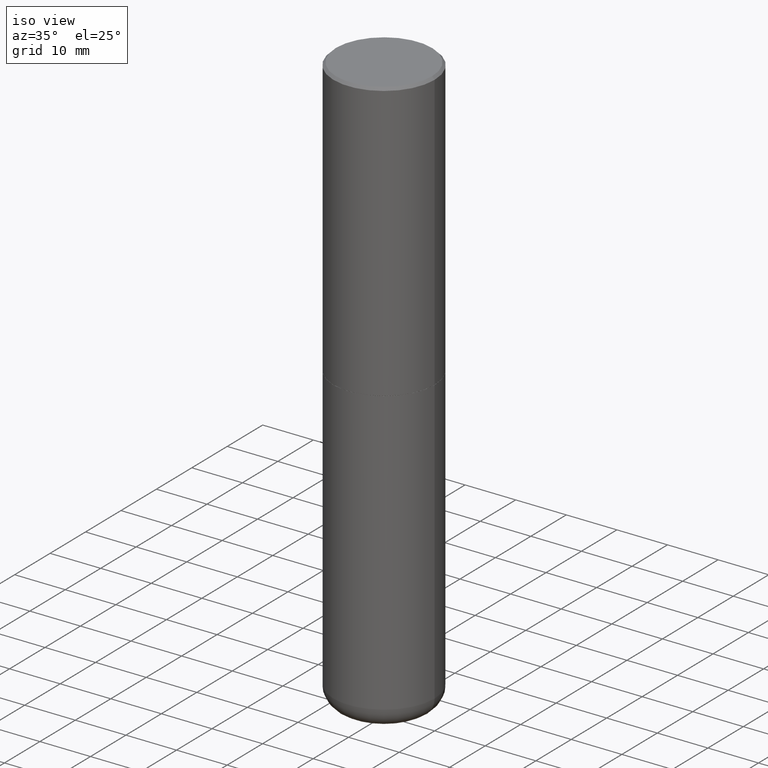
[diagram: clean part render]
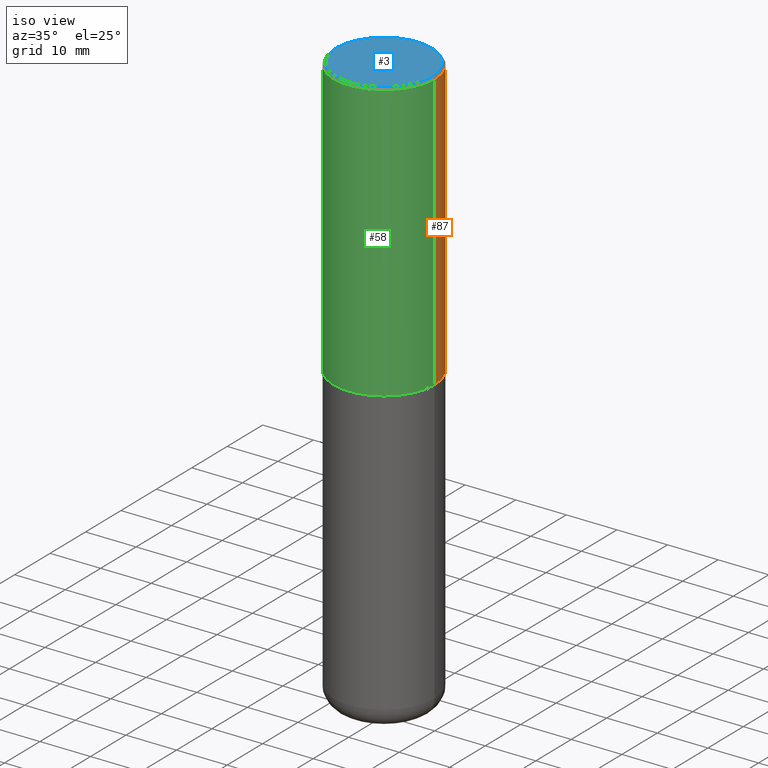
[diagram: same view with three faces highlighted in distinct colors, each labeled with its STEP entity id]
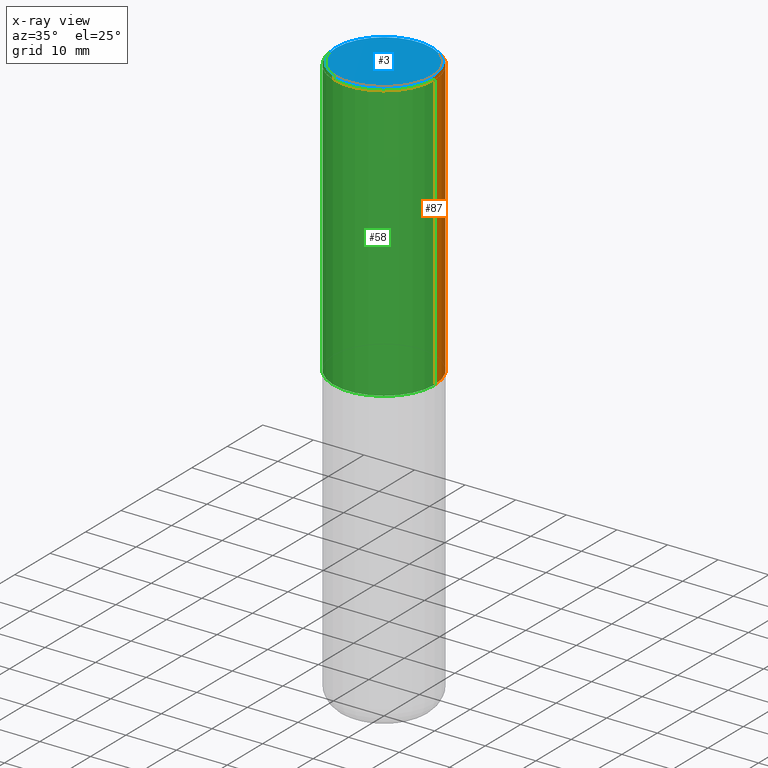
[diagram: x-ray of the same camera — body ghosted, the three highlighted faces saturated]
A machine part, iso view with three faces highlighted in distinct colors.
The next image is the same camera in x-ray (body ghosted, the three faces saturated) — at least one of them is partly hidden behind the body in this view.
Their STEP definitions:

[orange] entity #87 — the highlighted cylindrical surface (partial cylindrical patch) has radius 10 mm, axis along (-0, 0, 1).
#8 = AXIS2_PLACEMENT_3D ( 'NONE', #183, #410, #210 ) ;
#14 = VECTOR ( 'NONE', #386, 39.37007874015748143 ) ;
#19 = CARTESIAN_POINT ( 'NONE',  ( 0.000000000000000000, 0.000000000000000000, 0.000000000000000000 ) ) ;
#40 = ORIENTED_EDGE ( 'NONE', *, *, #278, .F. ) ;
#44 = EDGE_CURVE ( 'NONE', #245, #342, #307, .T. ) ;
#62 = CARTESIAN_POINT ( 'NONE',  ( -0.3937000000000002720, -1.015989167596965718E-15, -2.164399999999999658 ) ) ;
#72 = ORIENTED_EDGE ( 'NONE', *, *, #44, .T. ) ;
#75 = EDGE_CURVE ( 'NONE', #342, #175, #153, .T. ) ;
#87 = ADVANCED_FACE ( 'NONE', ( #110 ), #319, .T. ) ;
#107 = EDGE_LOOP ( 'NONE', ( #72, #390, #40, #405 ) ) ;
#110 = FACE_OUTER_BOUND ( 'NONE', #107, .T. ) ;
#149 = DIRECTION ( 'NONE',  ( -2.445468806185136877E-29, 3.491481338843145188E-15, 1.000000000000000000 ) ) ;
#150 = VECTOR ( 'NONE', #149, 39.37007874015748143 ) ;
#153 = LINE ( 'NONE', #294, #14 ) ;
#162 = CARTESIAN_POINT ( 'NONE',  ( 0.3937000000000001054, -2.770807688499516128E-15, -0.02000000000000008715 ) ) ;
#170 = DIRECTION ( 'NONE',  ( -2.445468806185136597E-29, 3.491481338843145583E-15, 1.000000000000000000 ) ) ;
#175 = VERTEX_POINT ( 'NONE', #252 ) ;
#183 = CARTESIAN_POINT ( 'NONE',  ( 4.890937612370294178E-31, -6.982962677686321191E-17, -0.02000000000000008715 ) ) ;
#205 = AXIS2_PLACEMENT_3D ( 'NONE', #343, #170, #310 ) ;
#210 = DIRECTION ( 'NONE',  ( 1.000000000000000000, -6.982962677686266711E-15, 0.000000000000000000 ) ) ;
#218 = DIRECTION ( 'NONE',  ( 1.000000000000000000, -6.982962677686266711E-15, 4.876176775795935793E-29 ) ) ;
#223 = AXIS2_PLACEMENT_3D ( 'NONE', #19, #288, #218 ) ;
#245 = VERTEX_POINT ( 'NONE', #349 ) ;
#250 = EDGE_CURVE ( 'NONE', #245, #415, #291, .T. ) ;
#252 = CARTESIAN_POINT ( 'NONE',  ( -0.3937000000000001054, 2.679362779428220707E-15, -0.02000000000000008715 ) ) ;
#278 = EDGE_CURVE ( 'NONE', #415, #175, #417, .T. ) ;
#288 = DIRECTION ( 'NONE',  ( -2.445468806185136597E-29, 3.491481338843145583E-15, 1.000000000000000000 ) ) ;
#291 = LINE ( 'NONE', #327, #150 ) ;
#294 = CARTESIAN_POINT ( 'NONE',  ( -0.3937000000000002164, 2.797406750687515970E-15, -1.936584745033357576E-29 ) ) ;
#307 = CIRCLE ( 'NONE', #205, 0.3937000000000002720 ) ;
#310 = DIRECTION ( 'NONE',  ( 1.000000000000000000, -6.982962677686269077E-15, 0.000000000000000000 ) ) ;
#319 = CYLINDRICAL_SURFACE ( 'NONE', #223, 0.3937000000000002164 ) ;
#327 = CARTESIAN_POINT ( 'NONE',  ( 0.3937000000000002164, -2.749192406205084794E-15, 1.919750796630861012E-29 ) ) ;
#342 = VERTEX_POINT ( 'NONE', #62 ) ;
#343 = CARTESIAN_POINT ( 'NONE',  ( 5.292972684107107621E-29, -7.556962209792102838E-15, -2.164399999999999658 ) ) ;
#349 = CARTESIAN_POINT ( 'NONE',  ( 0.3937000000000002720, -1.030615461599718763E-14, -2.164399999999999658 ) ) ;
#386 = DIRECTION ( 'NONE',  ( -2.445468806185136877E-29, 3.491481338843145188E-15, 1.000000000000000000 ) ) ;
#390 = ORIENTED_EDGE ( 'NONE', *, *, #75, .T. ) ;
#405 = ORIENTED_EDGE ( 'NONE', *, *, #250, .F. ) ;
#410 = DIRECTION ( 'NONE',  ( -2.445468806185136597E-29, 3.491481338843145583E-15, 1.000000000000000000 ) ) ;
#415 = VERTEX_POINT ( 'NONE', #162 ) ;
#417 = CIRCLE ( 'NONE', #8, 0.3937000000000001054 ) ;

[blue] entity #3 — the highlighted planar face has unit normal (0, -0, -1).
#3 = ADVANCED_FACE ( 'NONE', ( #124 ), #157, .F. ) ;
#5 = VERTEX_POINT ( 'NONE', #263 ) ;
#7 = DIRECTION ( 'NONE',  ( -2.445468806185136597E-29, 3.491481338843145583E-15, 1.000000000000000000 ) ) ;
#12 = EDGE_CURVE ( 'NONE', #5, #191, #192, .T. ) ;
#18 = DIRECTION ( 'NONE',  ( 1.000000000000000000, -6.982962677686266711E-15, 4.877734241229876808E-29 ) ) ;
#37 = CARTESIAN_POINT ( 'NONE',  ( -5.532412495976664402E-45, 7.898818803016371119E-31, 2.262311619753217762E-16 ) ) ;
#60 = AXIS2_PLACEMENT_3D ( 'NONE', #37, #7, #98 ) ;
#98 = DIRECTION ( 'NONE',  ( 1.000000000000000000, -6.982962677686266711E-15, 4.877734241229876808E-29 ) ) ;
#111 = CARTESIAN_POINT ( 'NONE',  ( 0.3736999999999999211, -2.667287895133367964E-15, 2.262311619753402158E-16 ) ) ;
#112 = CARTESIAN_POINT ( 'NONE',  ( -5.532412495976664402E-45, 7.898818803016371119E-31, 2.262311619753217762E-16 ) ) ;
#117 = EDGE_CURVE ( 'NONE', #191, #5, #355, .T. ) ;
#120 = DIRECTION ( 'NONE',  ( -1.000000000000000000, 6.982962677686265922E-15, -4.876176775795935793E-29 ) ) ;
#124 = FACE_OUTER_BOUND ( 'NONE', #326, .T. ) ;
#139 = ORIENTED_EDGE ( 'NONE', *, *, #117, .T. ) ;
#157 = PLANE ( 'NONE',  #334 ) ;
#191 = VERTEX_POINT ( 'NONE', #111 ) ;
#192 = CIRCLE ( 'NONE', #60, 0.3736999999999999211 ) ;
#206 = AXIS2_PLACEMENT_3D ( 'NONE', #112, #258, #18 ) ;
#258 = DIRECTION ( 'NONE',  ( -2.445468806185136597E-29, 3.491481338843145583E-15, 1.000000000000000000 ) ) ;
#263 = CARTESIAN_POINT ( 'NONE',  ( -0.3736999999999999211, 2.644447966039789453E-15, 2.262311619753034352E-16 ) ) ;
#299 = CARTESIAN_POINT ( 'NONE',  ( 2.609533152651356620E-15, 0.3736999999999999211, -1.191650995338022328E-15 ) ) ;
#326 = EDGE_LOOP ( 'NONE', ( #377, #139 ) ) ;
#334 = AXIS2_PLACEMENT_3D ( 'NONE', #299, #418, #120 ) ;
#355 = CIRCLE ( 'NONE', #206, 0.3736999999999999211 ) ;
#377 = ORIENTED_EDGE ( 'NONE', *, *, #12, .T. ) ;
#418 = DIRECTION ( 'NONE',  ( 2.438088387897960049E-29, -3.491481338843145188E-15, -1.000000000000000000 ) ) ;

[green] entity #58 — the highlighted cylindrical surface (partial cylindrical patch) has radius 10 mm, axis along (-0, 0, 1).
#14 = VECTOR ( 'NONE', #386, 39.37007874015748143 ) ;
#31 = DIRECTION ( 'NONE',  ( -2.445468806185136597E-29, 3.491481338843145583E-15, 1.000000000000000000 ) ) ;
#38 = AXIS2_PLACEMENT_3D ( 'NONE', #385, #31, #222 ) ;
#58 = ADVANCED_FACE ( 'NONE', ( #398 ), #241, .T. ) ;
#62 = CARTESIAN_POINT ( 'NONE',  ( -0.3937000000000002720, -1.015989167596965718E-15, -2.164399999999999658 ) ) ;
#75 = EDGE_CURVE ( 'NONE', #342, #175, #153, .T. ) ;
#95 = DIRECTION ( 'NONE',  ( 1.000000000000000000, -6.982962677686266711E-15, 4.876176775795935793E-29 ) ) ;
#97 = EDGE_LOOP ( 'NONE', ( #184, #284, #172, #371 ) ) ;
#122 = DIRECTION ( 'NONE',  ( -2.445468806185136597E-29, 3.491481338843145583E-15, 1.000000000000000000 ) ) ;
#131 = CARTESIAN_POINT ( 'NONE',  ( 0.000000000000000000, 0.000000000000000000, 0.000000000000000000 ) ) ;
#149 = DIRECTION ( 'NONE',  ( -2.445468806185136877E-29, 3.491481338843145188E-15, 1.000000000000000000 ) ) ;
#150 = VECTOR ( 'NONE', #149, 39.37007874015748143 ) ;
#153 = LINE ( 'NONE', #294, #14 ) ;
#162 = CARTESIAN_POINT ( 'NONE',  ( 0.3937000000000001054, -2.770807688499516128E-15, -0.02000000000000008715 ) ) ;
#172 = ORIENTED_EDGE ( 'NONE', *, *, #250, .T. ) ;
#175 = VERTEX_POINT ( 'NONE', #252 ) ;
#184 = ORIENTED_EDGE ( 'NONE', *, *, #75, .F. ) ;
#200 = AXIS2_PLACEMENT_3D ( 'NONE', #131, #122, #95 ) ;
#219 = CARTESIAN_POINT ( 'NONE',  ( 4.890937612370294178E-31, -6.982962677686321191E-17, -0.02000000000000008715 ) ) ;
#222 = DIRECTION ( 'NONE',  ( 1.000000000000000000, -6.982962677686269077E-15, 0.000000000000000000 ) ) ;
#241 = CYLINDRICAL_SURFACE ( 'NONE', #200, 0.3937000000000002164 ) ;
#245 = VERTEX_POINT ( 'NONE', #349 ) ;
#250 = EDGE_CURVE ( 'NONE', #245, #415, #291, .T. ) ;
#252 = CARTESIAN_POINT ( 'NONE',  ( -0.3937000000000001054, 2.679362779428220707E-15, -0.02000000000000008715 ) ) ;
#269 = AXIS2_PLACEMENT_3D ( 'NONE', #219, #318, #314 ) ;
#284 = ORIENTED_EDGE ( 'NONE', *, *, #409, .T. ) ;
#291 = LINE ( 'NONE', #327, #150 ) ;
#294 = CARTESIAN_POINT ( 'NONE',  ( -0.3937000000000002164, 2.797406750687515970E-15, -1.936584745033357576E-29 ) ) ;
#296 = EDGE_CURVE ( 'NONE', #175, #415, #392, .T. ) ;
#314 = DIRECTION ( 'NONE',  ( 1.000000000000000000, -6.982962677686266711E-15, 0.000000000000000000 ) ) ;
#318 = DIRECTION ( 'NONE',  ( -2.445468806185136597E-29, 3.491481338843145583E-15, 1.000000000000000000 ) ) ;
#327 = CARTESIAN_POINT ( 'NONE',  ( 0.3937000000000002164, -2.749192406205084794E-15, 1.919750796630861012E-29 ) ) ;
#342 = VERTEX_POINT ( 'NONE', #62 ) ;
#349 = CARTESIAN_POINT ( 'NONE',  ( 0.3937000000000002720, -1.030615461599718763E-14, -2.164399999999999658 ) ) ;
#364 = CIRCLE ( 'NONE', #38, 0.3937000000000002720 ) ;
#371 = ORIENTED_EDGE ( 'NONE', *, *, #296, .F. ) ;
#385 = CARTESIAN_POINT ( 'NONE',  ( 5.292972684107107621E-29, -7.556962209792102838E-15, -2.164399999999999658 ) ) ;
#386 = DIRECTION ( 'NONE',  ( -2.445468806185136877E-29, 3.491481338843145188E-15, 1.000000000000000000 ) ) ;
#392 = CIRCLE ( 'NONE', #269, 0.3937000000000001054 ) ;
#398 = FACE_OUTER_BOUND ( 'NONE', #97, .T. ) ;
#409 = EDGE_CURVE ( 'NONE', #342, #245, #364, .T. ) ;
#415 = VERTEX_POINT ( 'NONE', #162 ) ;